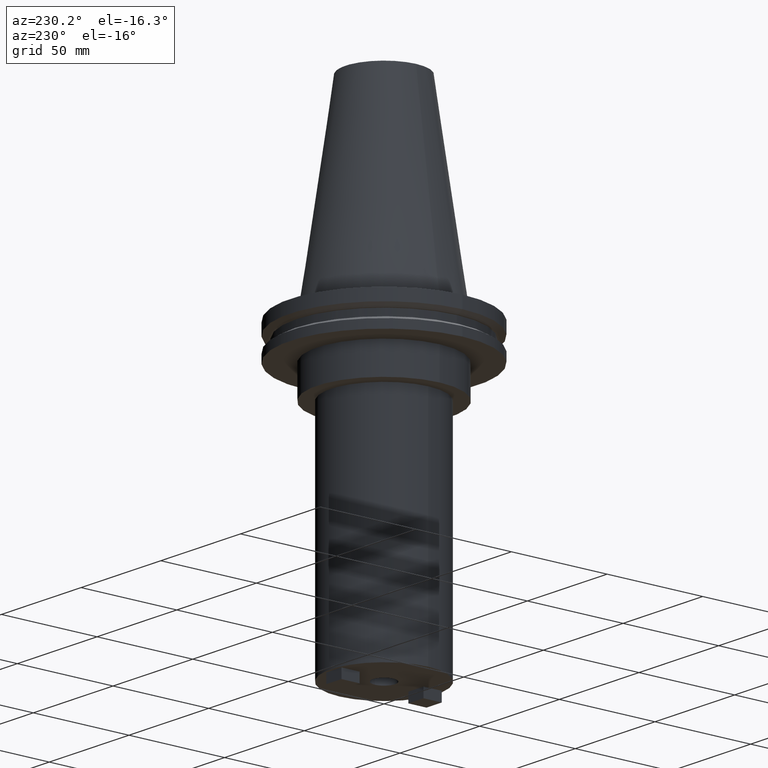
[diagram: clean part render]
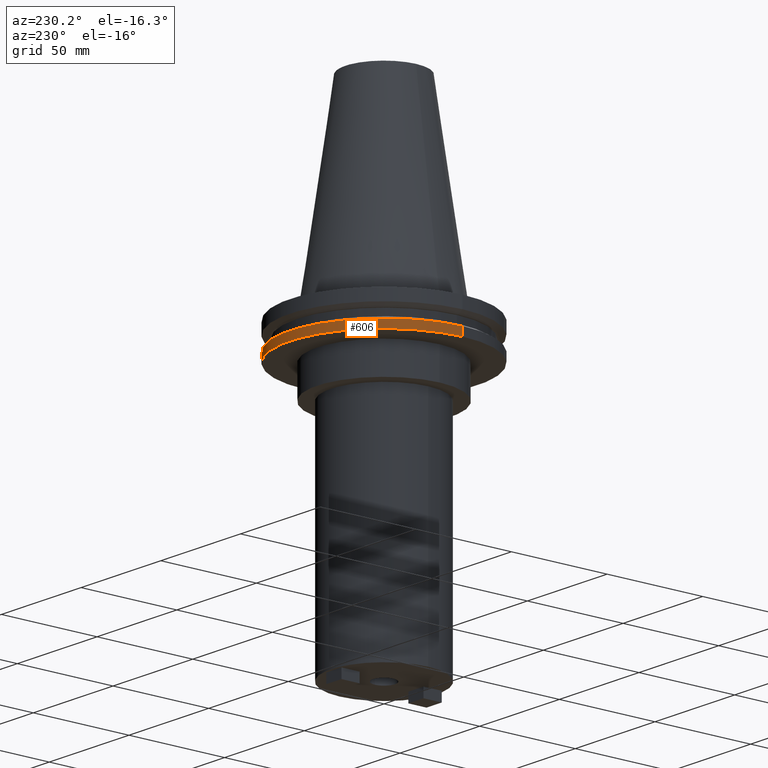
[diagram: same view with one face highlighted and labeled with its STEP entity id]
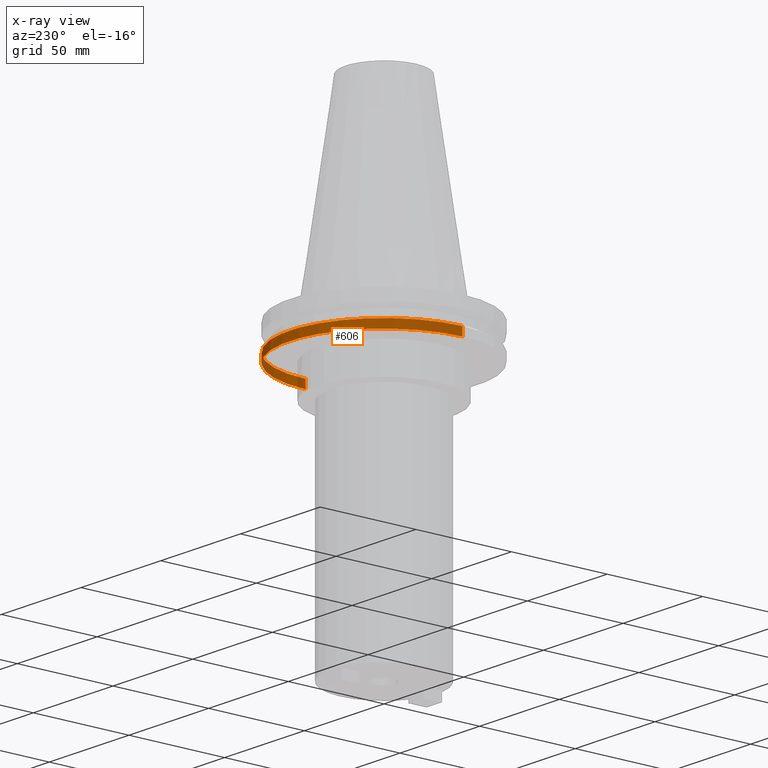
[diagram: x-ray of the same camera — body ghosted, the highlighted face saturated]
A machine part, auxiliary view. The second image highlights one B-rep face of the part: STEP entity #606.
The next image is the same camera in x-ray: the body ghosted, the highlighted face saturated — about 3% of this face is hidden behind the body in this view.
In plain terms, the highlighted cylindrical surface (partial cylindrical patch) has radius 49.215 mm, axis along (-0, -0, 1).
Its self-contained STEP definition (entity closure, byte-faithful):
#3 = EDGE_CURVE ( 'NONE', #386, #532, #207, .T. ) ;
#41 = EDGE_CURVE ( 'NONE', #782, #340, #972, .T. ) ;
#63 = AXIS2_PLACEMENT_3D ( 'NONE', #920, #387, #323 ) ;
#65 = AXIS2_PLACEMENT_3D ( 'NONE', #274, #622, #955 ) ;
#87 = DIRECTION ( 'NONE',  ( 1.000000000000000000, 0.000000000000000000, 0.000000000000000000 ) ) ;
#104 = CARTESIAN_POINT ( 'NONE',  ( 49.21499999999998920, 0.000000000000000000, -14.65761014474876944 ) ) ;
#130 = CARTESIAN_POINT ( 'NONE',  ( -49.21499999999998920, 6.027099222003697037E-15, 101.5999999999999943 ) ) ;
#161 = FACE_OUTER_BOUND ( 'NONE', #1006, .T. ) ;
#207 = LINE ( 'NONE', #130, #402 ) ;
#221 = AXIS2_PLACEMENT_3D ( 'NONE', #608, #946, #87 ) ;
#249 = CIRCLE ( 'NONE', #65, 49.21499999999998920 ) ;
#261 = CARTESIAN_POINT ( 'NONE',  ( -49.21499999999998920, 6.027099222003697037E-15, -14.65761014474876944 ) ) ;
#270 = CYLINDRICAL_SURFACE ( 'NONE', #221, 49.21499999999998920 ) ;
#274 = CARTESIAN_POINT ( 'NONE',  ( 0.000000000000000000, 0.000000000000000000, -14.65761014474876944 ) ) ;
#296 = ORIENTED_EDGE ( 'NONE', *, *, #841, .T. ) ;
#310 = CARTESIAN_POINT ( 'NONE',  ( 49.21499999999998920, 0.000000000000000000, 101.5999999999999943 ) ) ;
#323 = DIRECTION ( 'NONE',  ( 1.000000000000000000, 0.000000000000000000, 0.000000000000000000 ) ) ;
#340 = VERTEX_POINT ( 'NONE', #104 ) ;
#352 = CARTESIAN_POINT ( 'NONE',  ( -49.21499999999998920, 6.027099222003697037E-15, -19.04999999999999716 ) ) ;
#386 = VERTEX_POINT ( 'NONE', #352 ) ;
#387 = DIRECTION ( 'NONE',  ( -0.000000000000000000, -0.000000000000000000, 1.000000000000000000 ) ) ;
#402 = VECTOR ( 'NONE', #981, 1000.000000000000000 ) ;
#465 = ORIENTED_EDGE ( 'NONE', *, *, #3, .T. ) ;
#532 = VERTEX_POINT ( 'NONE', #261 ) ;
#606 = ADVANCED_FACE ( 'NONE', ( #161 ), #270, .T. ) ;
#608 = CARTESIAN_POINT ( 'NONE',  ( 0.000000000000000000, 0.000000000000000000, 101.5999999999999943 ) ) ;
#622 = DIRECTION ( 'NONE',  ( -0.000000000000000000, -0.000000000000000000, 1.000000000000000000 ) ) ;
#660 = CARTESIAN_POINT ( 'NONE',  ( 49.21499999999998920, 0.000000000000000000, -19.04999999999999716 ) ) ;
#782 = VERTEX_POINT ( 'NONE', #660 ) ;
#814 = ORIENTED_EDGE ( 'NONE', *, *, #1066, .F. ) ;
#817 = DIRECTION ( 'NONE',  ( -0.000000000000000000, -0.000000000000000000, 1.000000000000000000 ) ) ;
#832 = CIRCLE ( 'NONE', #63, 49.21499999999998920 ) ;
#841 = EDGE_CURVE ( 'NONE', #782, #386, #832, .T. ) ;
#853 = ORIENTED_EDGE ( 'NONE', *, *, #41, .F. ) ;
#920 = CARTESIAN_POINT ( 'NONE',  ( 0.000000000000000000, 0.000000000000000000, -19.04999999999999716 ) ) ;
#946 = DIRECTION ( 'NONE',  ( -0.000000000000000000, -0.000000000000000000, 1.000000000000000000 ) ) ;
#955 = DIRECTION ( 'NONE',  ( 1.000000000000000000, 0.000000000000000000, 0.000000000000000000 ) ) ;
#972 = LINE ( 'NONE', #310, #978 ) ;
#978 = VECTOR ( 'NONE', #817, 1000.000000000000000 ) ;
#981 = DIRECTION ( 'NONE',  ( -0.000000000000000000, -0.000000000000000000, 1.000000000000000000 ) ) ;
#1006 = EDGE_LOOP ( 'NONE', ( #296, #465, #814, #853 ) ) ;
#1066 = EDGE_CURVE ( 'NONE', #340, #532, #249, .T. ) ;